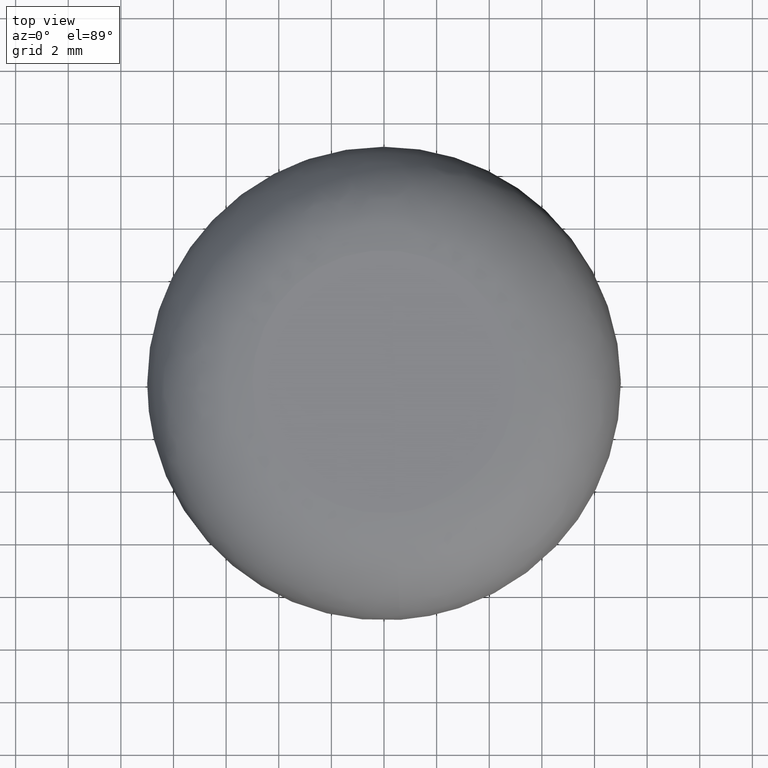
[diagram: clean part render]
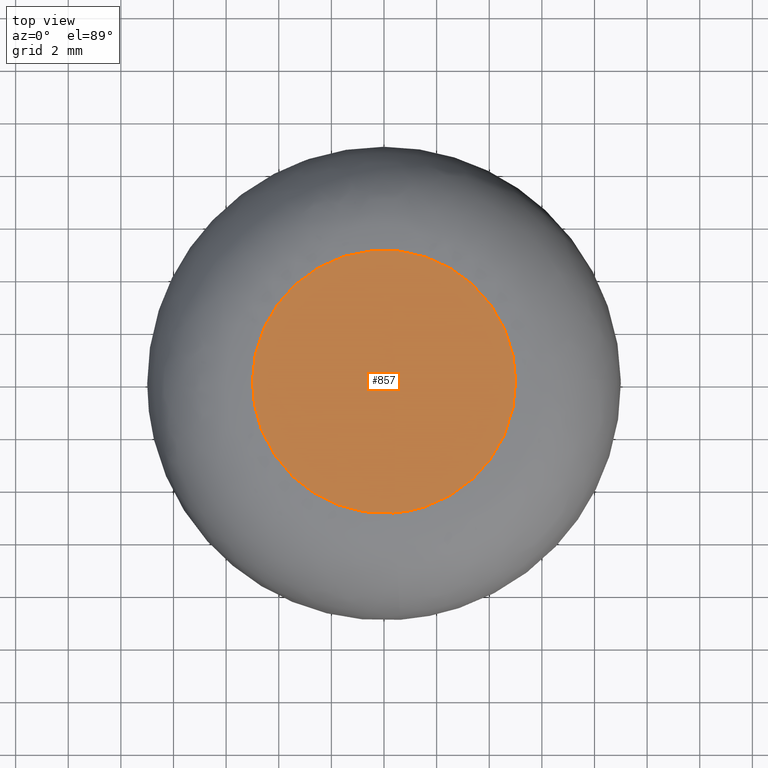
[diagram: same view with one face highlighted and labeled with its STEP entity id]
A machine part, top view. The second image highlights one B-rep face of the part: STEP entity #857.
In plain terms, the highlighted face is a freeform B-spline surface patch.
Its self-contained STEP definition (entity closure, byte-faithful):
#637=CARTESIAN_POINT('',(0.348666257935958,-4.987828369300749,11.199999999999999));
#638=VERTEX_POINT('',#637);
#639=CARTESIAN_POINT('',(-5.0,0.0,11.199999999999999));
#640=VERTEX_POINT('',#639);
#641=CARTESIAN_POINT('',(0.348666257935958,-4.987828369300749,11.199999999999996));
#642=CARTESIAN_POINT('',(0.174545579425353,-4.999999999999999,11.199999999999998));
#643=CARTESIAN_POINT('',(0.0,-5.0,11.199999999999999));
#644=CARTESIAN_POINT('',(-5.000000000000001,-5.000000000000001,11.199999999999999));
#645=CARTESIAN_POINT('',(-5.0,0.0,11.199999999999999));
#653=(BOUNDED_CURVE()B_SPLINE_CURVE(2,(#641,#642,#643,#644,#645),.UNSPECIFIED.,.F.,.U.)B_SPLINE_CURVE_WITH_KNOTS((3,2,3),(0.737833686531576,0.750000000000000,1.0),.UNSPECIFIED.)CURVE()GEOMETRIC_REPRESENTATION_ITEM()RATIONAL_B_SPLINE_CURVE((0.972879876379540,0.985746277148559,1.0,0.707106781186548,1.0))REPRESENTATION_ITEM(''));
#654=EDGE_CURVE('',#638,#640,#653,.T.);
#656=CARTESIAN_POINT('',(4.999605221082165,0.062830199452536,11.199999999999999));
#657=VERTEX_POINT('',#656);
#658=CARTESIAN_POINT('',(-5.0,0.0,11.199999999999999));
#659=CARTESIAN_POINT('',(-5.000000000000001,5.000000000000001,11.199999999999999));
#660=CARTESIAN_POINT('',(0.0,5.0,11.199999999999999));
#661=CARTESIAN_POINT('',(4.937559649467487,5.000000000000001,11.200000000000001));
#662=CARTESIAN_POINT('',(4.999605221082165,0.062830199452536,11.199999999999999));
#670=(BOUNDED_CURVE()B_SPLINE_CURVE(2,(#658,#659,#660,#661,#662),.UNSPECIFIED.,.F.,.U.)B_SPLINE_CURVE_WITH_KNOTS((3,2,3),(0.0,0.250000000000000,0.497784295919268),.UNSPECIFIED.)CURVE()GEOMETRIC_REPRESENTATION_ITEM()RATIONAL_B_SPLINE_CURVE((1.0,0.707106781186548,1.0,0.709702639987123,0.994854295638349))REPRESENTATION_ITEM(''));
#671=EDGE_CURVE('',#640,#657,#670,.T.);
#755=CARTESIAN_POINT('',(5.0,0.0,11.199999999999999));
#756=VERTEX_POINT('',#755);
#757=CARTESIAN_POINT('',(5.0,0.0,11.199999999999999));
#758=CARTESIAN_POINT('',(4.999999999999999,-4.662684236236403,11.200000000000001));
#759=CARTESIAN_POINT('',(0.348666257935958,-4.987828369300749,11.199999999999998));
#767=(BOUNDED_CURVE()B_SPLINE_CURVE(2,(#757,#758,#759),.UNSPECIFIED.,.F.,.U.)B_SPLINE_CURVE_WITH_KNOTS((3,3),(0.500000000000000,0.737833686531577),.UNSPECIFIED.)CURVE()GEOMETRIC_REPRESENTATION_ITEM()RATIONAL_B_SPLINE_CURVE((1.0,0.721360504037987,0.972879876379541))REPRESENTATION_ITEM(''));
#768=EDGE_CURVE('',#756,#638,#767,.T.);
#800=CARTESIAN_POINT('',(4.999605221082165,0.062830199452536,11.200000000000005));
#801=CARTESIAN_POINT('',(5.000000000000001,0.031416339994430,11.200000000000005));
#802=CARTESIAN_POINT('',(5.0,0.0,11.199999999999999));
#810=(BOUNDED_CURVE()B_SPLINE_CURVE(2,(#800,#801,#802),.UNSPECIFIED.,.F.,.U.)B_SPLINE_CURVE_WITH_KNOTS((3,3),(0.497784295919267,0.500000000000000),.UNSPECIFIED.)CURVE()GEOMETRIC_REPRESENTATION_ITEM()RATIONAL_B_SPLINE_CURVE((0.994854295638349,0.997404141199425,1.0))REPRESENTATION_ITEM(''));
#811=EDGE_CURVE('',#657,#756,#810,.T.);
#846=CARTESIAN_POINT('',(-5.499499980618060,-5.498896302368586,11.199999999999999));
#847=CARTESIAN_POINT('',(5.499500248838961,-5.498896302368586,11.199999999999999));
#848=CARTESIAN_POINT('',(-5.499499980618060,5.499368180857264,11.199999999999999));
#849=CARTESIAN_POINT('',(5.499500248838961,5.499368180857264,11.199999999999999));
#850=B_SPLINE_SURFACE_WITH_KNOTS('',1,1,((#846,#848),(#847,#849)),.UNSPECIFIED.,.F.,.F.,.U.,(2,2),(2,2),(0.0,10.999000229457019),(0.0,10.998264483225849),.UNSPECIFIED.);
#851=ORIENTED_EDGE('',*,*,#654,.F.);
#852=ORIENTED_EDGE('',*,*,#768,.F.);
#853=ORIENTED_EDGE('',*,*,#811,.F.);
#854=ORIENTED_EDGE('',*,*,#671,.F.);
#855=EDGE_LOOP('',(#851,#852,#853,#854));
#856=FACE_OUTER_BOUND('',#855,.T.);
#857=ADVANCED_FACE('',(#856),#850,.T.);